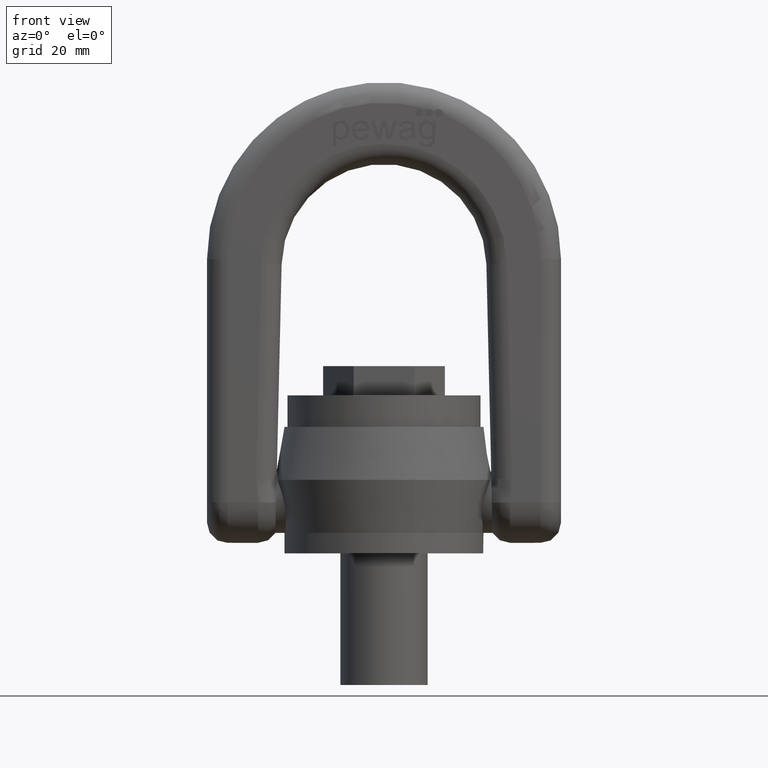
[diagram: clean part render]
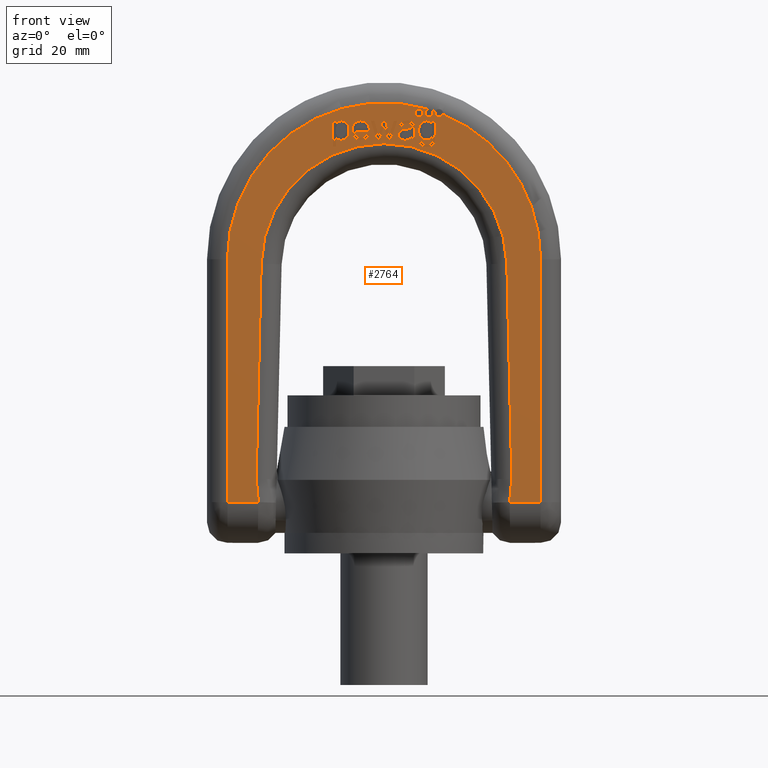
[diagram: same view with one face highlighted and labeled with its STEP entity id]
A machine part, front view. The second image highlights one B-rep face of the part: STEP entity #2764.
In plain terms, the highlighted planar face has unit normal (0, 1, 0).
Its self-contained STEP definition (entity closure, byte-faithful):
#321=B_SPLINE_CURVE_WITH_KNOTS('',3,(#6730,#6731,#6732,#6733),
 .UNSPECIFIED.,.F.,.F.,(4,4),(0.,1.),.UNSPECIFIED.);
#322=B_SPLINE_CURVE_WITH_KNOTS('',3,(#6738,#6739,#6740,#6741),
 .UNSPECIFIED.,.F.,.F.,(4,4),(0.,1.),.UNSPECIFIED.);
#323=B_SPLINE_CURVE_WITH_KNOTS('',3,(#6743,#6744,#6745,#6746,#6747,#6748,
#6749,#6750,#6751,#6752),.UNSPECIFIED.,.F.,.F.,(4,2,2,2,4),(0.,0.22835848191408,
0.466434346037285,0.703045305681466,1.),.UNSPECIFIED.);
#324=B_SPLINE_CURVE_WITH_KNOTS('',3,(#6754,#6755,#6756,#6757),
 .UNSPECIFIED.,.F.,.F.,(4,4),(0.,1.),.UNSPECIFIED.);
#325=B_SPLINE_CURVE_WITH_KNOTS('',3,(#6761,#6762,#6763,#6764),
 .UNSPECIFIED.,.F.,.F.,(4,4),(0.,1.),.UNSPECIFIED.);
#326=B_SPLINE_CURVE_WITH_KNOTS('',3,(#6766,#6767,#6768,#6769),
 .UNSPECIFIED.,.F.,.F.,(4,4),(0.,1.),.UNSPECIFIED.);
#327=B_SPLINE_CURVE_WITH_KNOTS('',3,(#6771,#6772,#6773,#6774),
 .UNSPECIFIED.,.F.,.F.,(4,4),(0.,1.),.UNSPECIFIED.);
#328=B_SPLINE_CURVE_WITH_KNOTS('',3,(#6776,#6777,#6778,#6779),
 .UNSPECIFIED.,.F.,.F.,(4,4),(0.,1.),.UNSPECIFIED.);
#329=B_SPLINE_CURVE_WITH_KNOTS('',3,(#6781,#6782,#6783,#6784,#6785,#6786),
 .UNSPECIFIED.,.F.,.F.,(4,2,4),(0.,0.559782608695652,1.),.UNSPECIFIED.);
#330=B_SPLINE_CURVE_WITH_KNOTS('',3,(#6788,#6789,#6790,#6791),
 .UNSPECIFIED.,.F.,.F.,(4,4),(0.,1.),.UNSPECIFIED.);
#331=B_SPLINE_CURVE_WITH_KNOTS('',3,(#6795,#6796,#6797,#6798),
 .UNSPECIFIED.,.F.,.F.,(4,4),(0.,1.),.UNSPECIFIED.);
#332=B_SPLINE_CURVE_WITH_KNOTS('',3,(#6800,#6801,#6802,#6803,#6804,#6805),
 .UNSPECIFIED.,.F.,.F.,(4,2,4),(0.,0.476123595505616,1.),.UNSPECIFIED.);
#333=B_SPLINE_CURVE_WITH_KNOTS('',3,(#6807,#6808,#6809,#6810),
 .UNSPECIFIED.,.F.,.F.,(4,4),(0.,1.),.UNSPECIFIED.);
#334=B_SPLINE_CURVE_WITH_KNOTS('',3,(#6812,#6813,#6814,#6815,#6816,#6817,
#6818,#6819),.UNSPECIFIED.,.F.,.F.,(4,2,2,4),(0.,0.472355769230765,0.730769230769227,
1.),.UNSPECIFIED.);
#335=B_SPLINE_CURVE_WITH_KNOTS('',3,(#6823,#6824,#6825,#6826),
 .UNSPECIFIED.,.F.,.F.,(4,4),(0.,1.),.UNSPECIFIED.);
#336=B_SPLINE_CURVE_WITH_KNOTS('',3,(#6828,#6829,#6830,#6831),
 .UNSPECIFIED.,.F.,.F.,(4,4),(0.,1.),.UNSPECIFIED.);
#337=B_SPLINE_CURVE_WITH_KNOTS('',3,(#6833,#6834,#6835,#6836,#6837,#6838,
#6839,#6840,#6841,#6842),.UNSPECIFIED.,.F.,.F.,(4,2,2,2,4),(0.,0.23013929483635,
0.492074150143511,0.754009005450665,1.),.UNSPECIFIED.);
#338=B_SPLINE_CURVE_WITH_KNOTS('',3,(#6860,#6861,#6862,#6863,#6864,#6865),
 .UNSPECIFIED.,.F.,.F.,(4,2,4),(0.,0.329498767460973,1.),.UNSPECIFIED.);
#339=B_SPLINE_CURVE_WITH_KNOTS('',3,(#6867,#6868,#6869,#6870,#6871,#6872,
#6873,#6874),.UNSPECIFIED.,.F.,.F.,(4,2,2,4),(0.,0.361028692437346,0.681441656975491,
1.),.UNSPECIFIED.);
#340=B_SPLINE_CURVE_WITH_KNOTS('',3,(#6876,#6877,#6878,#6879),
 .UNSPECIFIED.,.F.,.F.,(4,4),(0.,1.),.UNSPECIFIED.);
#341=B_SPLINE_CURVE_WITH_KNOTS('',3,(#6883,#6884,#6885,#6886),
 .UNSPECIFIED.,.F.,.F.,(4,4),(0.,1.),.UNSPECIFIED.);
#342=B_SPLINE_CURVE_WITH_KNOTS('',3,(#6888,#6889,#6890,#6891,#6892,#6893),
 .UNSPECIFIED.,.F.,.F.,(4,2,4),(0.,0.555803571428572,1.),.UNSPECIFIED.);
#343=B_SPLINE_CURVE_WITH_KNOTS('',3,(#6895,#6896,#6897,#6898,#6899,#6900),
 .UNSPECIFIED.,.F.,.F.,(4,2,4),(0.,0.500000000000021,1.),.UNSPECIFIED.);
#344=B_SPLINE_CURVE_WITH_KNOTS('',3,(#6902,#6903,#6904,#6905,#6906,#6907,
#6908,#6909,#6910,#6911,#6912,#6913,#6914,#6915),.UNSPECIFIED.,.F.,.F.,
(4,2,2,2,2,2,4),(0.,0.15220134604599,0.327187324733596,0.502173303421202,
0.676318003365113,0.850462703309028,1.),.UNSPECIFIED.);
#345=B_SPLINE_CURVE_WITH_KNOTS('',3,(#6920,#6921,#6922,#6923),
 .UNSPECIFIED.,.F.,.F.,(4,4),(0.,1.),.UNSPECIFIED.);
#346=B_SPLINE_CURVE_WITH_KNOTS('',3,(#6931,#6932,#6933,#6934),
 .UNSPECIFIED.,.F.,.F.,(4,4),(0.,1.),.UNSPECIFIED.);
#347=B_SPLINE_CURVE_WITH_KNOTS('',3,(#6948,#6949,#6950,#6951),
 .UNSPECIFIED.,.F.,.F.,(4,4),(0.,1.),.UNSPECIFIED.);
#348=B_SPLINE_CURVE_WITH_KNOTS('',3,(#6956,#6957,#6958,#6959),
 .UNSPECIFIED.,.F.,.F.,(4,4),(0.,1.),.UNSPECIFIED.);
#349=B_SPLINE_CURVE_WITH_KNOTS('',3,(#6961,#6962,#6963,#6964,#6965,#6966),
 .UNSPECIFIED.,.F.,.F.,(4,2,4),(0.,0.434679334916865,1.),.UNSPECIFIED.);
#350=B_SPLINE_CURVE_WITH_KNOTS('',3,(#6968,#6969,#6970,#6971),
 .UNSPECIFIED.,.F.,.F.,(4,4),(0.,1.),.UNSPECIFIED.);
#351=B_SPLINE_CURVE_WITH_KNOTS('',3,(#6975,#6976,#6977,#6978),
 .UNSPECIFIED.,.F.,.F.,(4,4),(0.,1.),.UNSPECIFIED.);
#352=B_SPLINE_CURVE_WITH_KNOTS('',3,(#6980,#6981,#6982,#6983,#6984,#6985),
 .UNSPECIFIED.,.F.,.F.,(4,2,4),(0.,0.570469798657717,1.),.UNSPECIFIED.);
#353=B_SPLINE_CURVE_WITH_KNOTS('',3,(#6987,#6988,#6989,#6990,#6991,#6992,
#6993,#6994,#6995,#6996,#6997,#6998),.UNSPECIFIED.,.F.,.F.,(4,2,2,2,2,4),
(0.,0.122570626594235,0.24514125318847,0.495637533752417,0.746133814316363,
1.),.UNSPECIFIED.);
#354=B_SPLINE_CURVE_WITH_KNOTS('',3,(#7008,#7009,#7010,#7011),
 .UNSPECIFIED.,.F.,.F.,(4,4),(0.,1.),.UNSPECIFIED.);
#355=B_SPLINE_CURVE_WITH_KNOTS('',3,(#7013,#7014,#7015,#7016),
 .UNSPECIFIED.,.F.,.F.,(4,4),(0.,1.),.UNSPECIFIED.);
#356=B_SPLINE_CURVE_WITH_KNOTS('',3,(#7038,#7039,#7040,#7041),
 .UNSPECIFIED.,.F.,.F.,(4,4),(0.,1.),.UNSPECIFIED.);
#1791=LINE('',#6694,#2073);
#1794=LINE('',#6726,#2076);
#1795=LINE('',#6736,#2077);
#1796=LINE('',#6759,#2078);
#1797=LINE('',#6793,#2079);
#1798=LINE('',#6820,#2080);
#1799=LINE('',#6844,#2081);
#1800=LINE('',#6846,#2082);
#1801=LINE('',#6848,#2083);
#1802=LINE('',#6850,#2084);
#1803=LINE('',#6852,#2085);
#1804=LINE('',#6854,#2086);
#1805=LINE('',#6857,#2087);
#1806=LINE('',#6881,#2088);
#1807=LINE('',#6917,#2089);
#1808=LINE('',#6919,#2090);
#1809=LINE('',#6925,#2091);
#1810=LINE('',#6929,#2092);
#1811=LINE('',#6935,#2093);
#1812=LINE('',#6947,#2094);
#1813=LINE('',#6954,#2095);
#1814=LINE('',#6973,#2096);
#1815=LINE('',#6999,#2097);
#1816=LINE('',#7002,#2098);
#1817=LINE('',#7004,#2099);
#1818=LINE('',#7006,#2100);
#1819=LINE('',#7018,#2101);
#1820=LINE('',#7020,#2102);
#1821=LINE('',#7022,#2103);
#1822=LINE('',#7024,#2104);
#1823=LINE('',#7026,#2105);
#1824=LINE('',#7028,#2106);
#1825=LINE('',#7030,#2107);
#1826=LINE('',#7032,#2108);
#1827=LINE('',#7034,#2109);
#1828=LINE('',#7036,#2110);
#1829=LINE('',#7043,#2111);
#1830=LINE('',#7045,#2112);
#2073=VECTOR('',#5908,1.);
#2076=VECTOR('',#5915,1.);
#2077=VECTOR('',#5920,1.);
#2078=VECTOR('',#5921,1.);
#2079=VECTOR('',#5922,1.);
#2080=VECTOR('',#5923,1.);
#2081=VECTOR('',#5924,1.);
#2082=VECTOR('',#5925,1.);
#2083=VECTOR('',#5926,1.);
#2084=VECTOR('',#5927,1.);
#2085=VECTOR('',#5928,1.);
#2086=VECTOR('',#5929,1.);
#2087=VECTOR('',#5932,1.);
#2088=VECTOR('',#5933,1.);
#2089=VECTOR('',#5934,1.);
#2090=VECTOR('',#5935,1.);
#2091=VECTOR('',#5936,1.);
#2092=VECTOR('',#5939,1.);
#2093=VECTOR('',#5940,1.);
#2094=VECTOR('',#5951,1.);
#2095=VECTOR('',#5952,1.);
#2096=VECTOR('',#5953,1.);
#2097=VECTOR('',#5954,1.);
#2098=VECTOR('',#5955,1.);
#2099=VECTOR('',#5956,1.);
#2100=VECTOR('',#5957,1.);
#2101=VECTOR('',#5958,1.);
#2102=VECTOR('',#5959,1.);
#2103=VECTOR('',#5960,1.);
#2104=VECTOR('',#5961,1.);
#2105=VECTOR('',#5962,1.);
#2106=VECTOR('',#5963,1.);
#2107=VECTOR('',#5964,1.);
#2108=VECTOR('',#5965,1.);
#2109=VECTOR('',#5966,1.);
#2110=VECTOR('',#5967,1.);
#2111=VECTOR('',#5968,1.);
#2112=VECTOR('',#5969,1.);
#2643=PLANE('',#5644);
#2764=ADVANCED_FACE('',(#3019,#3020,#3021,#3022,#3023,#3024,#3025),#2643,
 .F.);
#3019=FACE_BOUND('',#3097,.T.);
#3020=FACE_BOUND('',#3098,.T.);
#3021=FACE_BOUND('',#3099,.T.);
#3022=FACE_BOUND('',#3100,.T.);
#3023=FACE_BOUND('',#3101,.T.);
#3024=FACE_BOUND('',#3102,.T.);
#3025=FACE_BOUND('',#3103,.T.);
#3097=EDGE_LOOP('',(#3435,#3436,#3437,#3438,#3439,#3440,#3441,#3442,#3443,
#3444,#3445,#3446,#3447,#3448,#3449,#3450,#3451));
#3098=EDGE_LOOP('',(#3452,#3453,#3454,#3455,#3456,#3457,#3458,#3459,#3460,
#3461));
#3099=EDGE_LOOP('',(#3462));
#3100=EDGE_LOOP('',(#3463,#3464,#3465,#3466,#3467,#3468,#3469,#3470,#3471,
#3472,#3473));
#3101=EDGE_LOOP('',(#3474,#3475,#3476,#3477,#3478,#3479,#3480,#3481,#3482,
#3483,#3484,#3485,#3486,#3487));
#3102=EDGE_LOOP('',(#3488,#3489,#3490,#3491,#3492,#3493,#3494,#3495,#3496));
#3103=EDGE_LOOP('',(#3497,#3498,#3499,#3500,#3501,#3502,#3503,#3504,#3505,
#3506,#3507,#3508,#3509,#3510,#3511,#3512,#3513,#3514,#3515));
#3435=ORIENTED_EDGE('',*,*,#4995,.F.);
#3436=ORIENTED_EDGE('',*,*,#4996,.F.);
#3437=ORIENTED_EDGE('',*,*,#4997,.F.);
#3438=ORIENTED_EDGE('',*,*,#4998,.F.);
#3439=ORIENTED_EDGE('',*,*,#4999,.F.);
#3440=ORIENTED_EDGE('',*,*,#5000,.F.);
#3441=ORIENTED_EDGE('',*,*,#5001,.F.);
#3442=ORIENTED_EDGE('',*,*,#5002,.F.);
#3443=ORIENTED_EDGE('',*,*,#5003,.F.);
#3444=ORIENTED_EDGE('',*,*,#5004,.F.);
#3445=ORIENTED_EDGE('',*,*,#5005,.F.);
#3446=ORIENTED_EDGE('',*,*,#5006,.F.);
#3447=ORIENTED_EDGE('',*,*,#5007,.F.);
#3448=ORIENTED_EDGE('',*,*,#5008,.F.);
#3449=ORIENTED_EDGE('',*,*,#5009,.F.);
#3450=ORIENTED_EDGE('',*,*,#5010,.F.);
#3451=ORIENTED_EDGE('',*,*,#5011,.F.);
#3452=ORIENTED_EDGE('',*,*,#5012,.F.);
#3453=ORIENTED_EDGE('',*,*,#5013,.F.);
#3454=ORIENTED_EDGE('',*,*,#5014,.F.);
#3455=ORIENTED_EDGE('',*,*,#5015,.F.);
#3456=ORIENTED_EDGE('',*,*,#5016,.F.);
#3457=ORIENTED_EDGE('',*,*,#5017,.F.);
#3458=ORIENTED_EDGE('',*,*,#5018,.F.);
#3459=ORIENTED_EDGE('',*,*,#5019,.F.);
#3460=ORIENTED_EDGE('',*,*,#5020,.F.);
#3461=ORIENTED_EDGE('',*,*,#5021,.F.);
#3462=ORIENTED_EDGE('',*,*,#5022,.F.);
#3463=ORIENTED_EDGE('',*,*,#5023,.F.);
#3464=ORIENTED_EDGE('',*,*,#5024,.F.);
#3465=ORIENTED_EDGE('',*,*,#5025,.F.);
#3466=ORIENTED_EDGE('',*,*,#5026,.F.);
#3467=ORIENTED_EDGE('',*,*,#5027,.F.);
#3468=ORIENTED_EDGE('',*,*,#5028,.F.);
#3469=ORIENTED_EDGE('',*,*,#5029,.F.);
#3470=ORIENTED_EDGE('',*,*,#5030,.F.);
#3471=ORIENTED_EDGE('',*,*,#5031,.F.);
#3472=ORIENTED_EDGE('',*,*,#5032,.F.);
#3473=ORIENTED_EDGE('',*,*,#5033,.F.);
#3474=ORIENTED_EDGE('',*,*,#4993,.T.);
#3475=ORIENTED_EDGE('',*,*,#5034,.T.);
#3476=ORIENTED_EDGE('',*,*,#5035,.T.);
#3477=ORIENTED_EDGE('',*,*,#5036,.T.);
#3478=ORIENTED_EDGE('',*,*,#5037,.T.);
#3479=ORIENTED_EDGE('',*,*,#5038,.T.);
#3480=ORIENTED_EDGE('',*,*,#4987,.T.);
#3481=ORIENTED_EDGE('',*,*,#5039,.T.);
#3482=ORIENTED_EDGE('',*,*,#5040,.T.);
#3483=ORIENTED_EDGE('',*,*,#5041,.F.);
#3484=ORIENTED_EDGE('',*,*,#5042,.T.);
#3485=ORIENTED_EDGE('',*,*,#5043,.F.);
#3486=ORIENTED_EDGE('',*,*,#5044,.T.);
#3487=ORIENTED_EDGE('',*,*,#5045,.T.);
#3488=ORIENTED_EDGE('',*,*,#5046,.F.);
#3489=ORIENTED_EDGE('',*,*,#5047,.F.);
#3490=ORIENTED_EDGE('',*,*,#5048,.F.);
#3491=ORIENTED_EDGE('',*,*,#5049,.F.);
#3492=ORIENTED_EDGE('',*,*,#5050,.F.);
#3493=ORIENTED_EDGE('',*,*,#5051,.F.);
#3494=ORIENTED_EDGE('',*,*,#5052,.F.);
#3495=ORIENTED_EDGE('',*,*,#5053,.F.);
#3496=ORIENTED_EDGE('',*,*,#5054,.F.);
#3497=ORIENTED_EDGE('',*,*,#5055,.F.);
#3498=ORIENTED_EDGE('',*,*,#5056,.F.);
#3499=ORIENTED_EDGE('',*,*,#5057,.F.);
#3500=ORIENTED_EDGE('',*,*,#5058,.F.);
#3501=ORIENTED_EDGE('',*,*,#5059,.F.);
#3502=ORIENTED_EDGE('',*,*,#5060,.F.);
#3503=ORIENTED_EDGE('',*,*,#5061,.F.);
#3504=ORIENTED_EDGE('',*,*,#5062,.F.);
#3505=ORIENTED_EDGE('',*,*,#5063,.F.);
#3506=ORIENTED_EDGE('',*,*,#5064,.F.);
#3507=ORIENTED_EDGE('',*,*,#5065,.F.);
#3508=ORIENTED_EDGE('',*,*,#5066,.F.);
#3509=ORIENTED_EDGE('',*,*,#5067,.F.);
#3510=ORIENTED_EDGE('',*,*,#5068,.F.);
#3511=ORIENTED_EDGE('',*,*,#5069,.F.);
#3512=ORIENTED_EDGE('',*,*,#5070,.F.);
#3513=ORIENTED_EDGE('',*,*,#5071,.F.);
#3514=ORIENTED_EDGE('',*,*,#5072,.F.);
#3515=ORIENTED_EDGE('',*,*,#5073,.F.);
#4575=VERTEX_POINT('',#6695);
#4576=VERTEX_POINT('',#6696);
#4581=VERTEX_POINT('',#6725);
#4582=VERTEX_POINT('',#6727);
#4583=VERTEX_POINT('',#6734);
#4584=VERTEX_POINT('',#6735);
#4585=VERTEX_POINT('',#6737);
#4586=VERTEX_POINT('',#6742);
#4587=VERTEX_POINT('',#6753);
#4588=VERTEX_POINT('',#6758);
#4589=VERTEX_POINT('',#6760);
#4590=VERTEX_POINT('',#6765);
#4591=VERTEX_POINT('',#6770);
#4592=VERTEX_POINT('',#6775);
#4593=VERTEX_POINT('',#6780);
#4594=VERTEX_POINT('',#6787);
#4595=VERTEX_POINT('',#6792);
#4596=VERTEX_POINT('',#6794);
#4597=VERTEX_POINT('',#6799);
#4598=VERTEX_POINT('',#6806);
#4599=VERTEX_POINT('',#6811);
#4600=VERTEX_POINT('',#6821);
#4601=VERTEX_POINT('',#6822);
#4602=VERTEX_POINT('',#6827);
#4603=VERTEX_POINT('',#6832);
#4604=VERTEX_POINT('',#6843);
#4605=VERTEX_POINT('',#6845);
#4606=VERTEX_POINT('',#6847);
#4607=VERTEX_POINT('',#6849);
#4608=VERTEX_POINT('',#6851);
#4609=VERTEX_POINT('',#6853);
#4610=VERTEX_POINT('',#6856);
#4611=VERTEX_POINT('',#6858);
#4612=VERTEX_POINT('',#6859);
#4613=VERTEX_POINT('',#6866);
#4614=VERTEX_POINT('',#6875);
#4615=VERTEX_POINT('',#6880);
#4616=VERTEX_POINT('',#6882);
#4617=VERTEX_POINT('',#6887);
#4618=VERTEX_POINT('',#6894);
#4619=VERTEX_POINT('',#6901);
#4620=VERTEX_POINT('',#6916);
#4621=VERTEX_POINT('',#6918);
#4622=VERTEX_POINT('',#6924);
#4623=VERTEX_POINT('',#6926);
#4624=VERTEX_POINT('',#6928);
#4625=VERTEX_POINT('',#6930);
#4626=VERTEX_POINT('',#6936);
#4627=VERTEX_POINT('',#6938);
#4628=VERTEX_POINT('',#6940);
#4629=VERTEX_POINT('',#6942);
#4630=VERTEX_POINT('',#6944);
#4631=VERTEX_POINT('',#6946);
#4632=VERTEX_POINT('',#6952);
#4633=VERTEX_POINT('',#6953);
#4634=VERTEX_POINT('',#6955);
#4635=VERTEX_POINT('',#6960);
#4636=VERTEX_POINT('',#6967);
#4637=VERTEX_POINT('',#6972);
#4638=VERTEX_POINT('',#6974);
#4639=VERTEX_POINT('',#6979);
#4640=VERTEX_POINT('',#6986);
#4641=VERTEX_POINT('',#7000);
#4642=VERTEX_POINT('',#7001);
#4643=VERTEX_POINT('',#7003);
#4644=VERTEX_POINT('',#7005);
#4645=VERTEX_POINT('',#7007);
#4646=VERTEX_POINT('',#7012);
#4647=VERTEX_POINT('',#7017);
#4648=VERTEX_POINT('',#7019);
#4649=VERTEX_POINT('',#7021);
#4650=VERTEX_POINT('',#7023);
#4651=VERTEX_POINT('',#7025);
#4652=VERTEX_POINT('',#7027);
#4653=VERTEX_POINT('',#7029);
#4654=VERTEX_POINT('',#7031);
#4655=VERTEX_POINT('',#7033);
#4656=VERTEX_POINT('',#7035);
#4657=VERTEX_POINT('',#7037);
#4658=VERTEX_POINT('',#7042);
#4659=VERTEX_POINT('',#7044);
#4987=EDGE_CURVE('',#4575,#4576,#1791,.T.);
#4993=EDGE_CURVE('',#4582,#4581,#1794,.T.);
#4995=EDGE_CURVE('',#4583,#4584,#321,.T.);
#4996=EDGE_CURVE('',#4585,#4583,#1795,.T.);
#4997=EDGE_CURVE('',#4586,#4585,#322,.T.);
#4998=EDGE_CURVE('',#4587,#4586,#323,.T.);
#4999=EDGE_CURVE('',#4588,#4587,#324,.T.);
#5000=EDGE_CURVE('',#4589,#4588,#1796,.T.);
#5001=EDGE_CURVE('',#4590,#4589,#325,.T.);
#5002=EDGE_CURVE('',#4591,#4590,#326,.T.);
#5003=EDGE_CURVE('',#4592,#4591,#327,.T.);
#5004=EDGE_CURVE('',#4593,#4592,#328,.T.);
#5005=EDGE_CURVE('',#4594,#4593,#329,.T.);
#5006=EDGE_CURVE('',#4595,#4594,#330,.T.);
#5007=EDGE_CURVE('',#4596,#4595,#1797,.T.);
#5008=EDGE_CURVE('',#4597,#4596,#331,.T.);
#5009=EDGE_CURVE('',#4598,#4597,#332,.T.);
#5010=EDGE_CURVE('',#4599,#4598,#333,.T.);
#5011=EDGE_CURVE('',#4584,#4599,#334,.T.);
#5012=EDGE_CURVE('',#4600,#4601,#1798,.T.);
#5013=EDGE_CURVE('',#4602,#4600,#335,.T.);
#5014=EDGE_CURVE('',#4603,#4602,#336,.T.);
#5015=EDGE_CURVE('',#4604,#4603,#337,.T.);
#5016=EDGE_CURVE('',#4605,#4604,#1799,.T.);
#5017=EDGE_CURVE('',#4606,#4605,#1800,.T.);
#5018=EDGE_CURVE('',#4607,#4606,#1801,.T.);
#5019=EDGE_CURVE('',#4608,#4607,#1802,.T.);
#5020=EDGE_CURVE('',#4609,#4608,#1803,.T.);
#5021=EDGE_CURVE('',#4601,#4609,#1804,.T.);
#5022=EDGE_CURVE('',#4610,#4610,#5555,.T.);
#5023=EDGE_CURVE('',#4611,#4612,#1805,.T.);
#5024=EDGE_CURVE('',#4613,#4611,#338,.T.);
#5025=EDGE_CURVE('',#4614,#4613,#339,.T.);
#5026=EDGE_CURVE('',#4615,#4614,#340,.T.);
#5027=EDGE_CURVE('',#4616,#4615,#1806,.T.);
#5028=EDGE_CURVE('',#4617,#4616,#341,.T.);
#5029=EDGE_CURVE('',#4618,#4617,#342,.T.);
#5030=EDGE_CURVE('',#4619,#4618,#343,.T.);
#5031=EDGE_CURVE('',#4620,#4619,#344,.T.);
#5032=EDGE_CURVE('',#4621,#4620,#1807,.T.);
#5033=EDGE_CURVE('',#4612,#4621,#1808,.T.);
#5034=EDGE_CURVE('',#4581,#4622,#345,.T.);
#5035=EDGE_CURVE('',#4622,#4623,#1809,.T.);
#5036=EDGE_CURVE('',#4623,#4624,#5556,.T.);
#5037=EDGE_CURVE('',#4624,#4625,#1810,.T.);
#5038=EDGE_CURVE('',#4625,#4575,#346,.T.);
#5039=EDGE_CURVE('',#4576,#4626,#1811,.T.);
#5040=EDGE_CURVE('',#4626,#4627,#5557,.T.);
#5041=EDGE_CURVE('',#4628,#4627,#5558,.T.);
#5042=EDGE_CURVE('',#4628,#4629,#5559,.T.);
#5043=EDGE_CURVE('',#4630,#4629,#5560,.T.);
#5044=EDGE_CURVE('',#4630,#4631,#5561,.T.);
#5045=EDGE_CURVE('',#4631,#4582,#1812,.T.);
#5046=EDGE_CURVE('',#4632,#4633,#347,.T.);
#5047=EDGE_CURVE('',#4634,#4632,#1813,.T.);
#5048=EDGE_CURVE('',#4635,#4634,#348,.T.);
#5049=EDGE_CURVE('',#4636,#4635,#349,.T.);
#5050=EDGE_CURVE('',#4637,#4636,#350,.T.);
#5051=EDGE_CURVE('',#4638,#4637,#1814,.T.);
#5052=EDGE_CURVE('',#4639,#4638,#351,.T.);
#5053=EDGE_CURVE('',#4640,#4639,#352,.T.);
#5054=EDGE_CURVE('',#4633,#4640,#353,.T.);
#5055=EDGE_CURVE('',#4641,#4642,#1815,.T.);
#5056=EDGE_CURVE('',#4643,#4641,#1816,.T.);
#5057=EDGE_CURVE('',#4644,#4643,#1817,.T.);
#5058=EDGE_CURVE('',#4645,#4644,#1818,.T.);
#5059=EDGE_CURVE('',#4646,#4645,#354,.T.);
#5060=EDGE_CURVE('',#4647,#4646,#355,.T.);
#5061=EDGE_CURVE('',#4648,#4647,#1819,.T.);
#5062=EDGE_CURVE('',#4649,#4648,#1820,.T.);
#5063=EDGE_CURVE('',#4650,#4649,#1821,.T.);
#5064=EDGE_CURVE('',#4651,#4650,#1822,.T.);
#5065=EDGE_CURVE('',#4652,#4651,#1823,.T.);
#5066=EDGE_CURVE('',#4653,#4652,#1824,.T.);
#5067=EDGE_CURVE('',#4654,#4653,#1825,.T.);
#5068=EDGE_CURVE('',#4655,#4654,#1826,.T.);
#5069=EDGE_CURVE('',#4656,#4655,#1827,.T.);
#5070=EDGE_CURVE('',#4657,#4656,#1828,.T.);
#5071=EDGE_CURVE('',#4658,#4657,#356,.T.);
#5072=EDGE_CURVE('',#4659,#4658,#1829,.T.);
#5073=EDGE_CURVE('',#4642,#4659,#1830,.T.);
#5555=CIRCLE('',#5637,1.3125);
#5556=CIRCLE('',#5638,42.);
#5557=CIRCLE('',#5639,53.5);
#5558=CIRCLE('',#5640,1.3125);
#5559=CIRCLE('',#5641,53.5);
#5560=CIRCLE('',#5642,1.3125);
#5561=CIRCLE('',#5643,53.5);
#5637=AXIS2_PLACEMENT_3D('',#6855,#5930,#5931);
#5638=AXIS2_PLACEMENT_3D('',#6927,#5937,#5938);
#5639=AXIS2_PLACEMENT_3D('',#6937,#5941,#5942);
#5640=AXIS2_PLACEMENT_3D('',#6939,#5943,#5944);
#5641=AXIS2_PLACEMENT_3D('',#6941,#5945,#5946);
#5642=AXIS2_PLACEMENT_3D('',#6943,#5947,#5948);
#5643=AXIS2_PLACEMENT_3D('',#6945,#5949,#5950);
#5644=AXIS2_PLACEMENT_3D('',#7046,#5970,#5971);
#5908=DIRECTION('',(1.,0.,-1.02768984071536E-15));
#5915=DIRECTION('',(1.,0.,-1.11825149691067E-15));
#5920=DIRECTION('',(1.,0.,0.));
#5921=DIRECTION('',(-0.989370262977939,0.,-0.145418302613403));
#5922=DIRECTION('',(0.991928985003784,0.,-0.126794671454929));
#5923=DIRECTION('',(-1.,0.,0.));
#5924=DIRECTION('',(1.,0.,0.));
#5925=DIRECTION('',(0.,0.,1.));
#5926=DIRECTION('',(1.,0.,0.));
#5927=DIRECTION('',(0.,0.,-1.));
#5928=DIRECTION('',(-1.,0.,0.));
#5929=DIRECTION('',(0.,0.,1.));
#5930=DIRECTION('',(0.,-1.,0.));
#5931=DIRECTION('',(0.,0.,0.999999999999996));
#5932=DIRECTION('',(-1.,0.,0.));
#5933=DIRECTION('',(-0.988666662925715,0.,0.150127377980603));
#5934=DIRECTION('',(-1.,0.,0.));
#5935=DIRECTION('',(0.,0.,-1.));
#5936=DIRECTION('',(0.0230857815721755,0.,0.999733487830233));
#5937=DIRECTION('',(0.,1.,0.));
#5938=DIRECTION('',(0.,0.,1.));
#5939=DIRECTION('',(0.0230857815721755,0.,-0.999733487830233));
#5940=DIRECTION('',(-9.29954853100969E-16,0.,1.));
#5941=DIRECTION('',(0.,-1.,0.));
#5942=DIRECTION('',(0.,0.,1.));
#5943=DIRECTION('',(0.,-1.,0.));
#5944=DIRECTION('',(0.,0.,0.999999999999996));
#5945=DIRECTION('',(0.,-1.,0.));
#5946=DIRECTION('',(0.,0.,1.));
#5947=DIRECTION('',(0.,-1.,0.));
#5948=DIRECTION('',(0.,0.,0.999999999999996));
#5949=DIRECTION('',(0.,-1.,0.));
#5950=DIRECTION('',(0.,0.,1.));
#5951=DIRECTION('',(-9.29954853100969E-16,0.,-1.));
#5952=DIRECTION('',(1.,0.,0.));
#5953=DIRECTION('',(-0.992687288142564,0.,0.120714323757216));
#5954=DIRECTION('',(-1.,0.,0.));
#5955=DIRECTION('',(0.304245570453575,0.,0.952593634693923));
#5956=DIRECTION('',(1.,0.,0.));
#5957=DIRECTION('',(0.259135455314437,0.,-0.965840988879111));
#5958=DIRECTION('',(1.,0.,0.));
#5959=DIRECTION('',(0.254367653151693,0.,0.967107593305988));
#5960=DIRECTION('',(1.,0.,0.));
#5961=DIRECTION('',(0.298320908470946,0.,-0.954465628280594));
#5962=DIRECTION('',(-1.,0.,0.));
#5963=DIRECTION('',(-0.269463722620021,0.,0.963010541059526));
#5964=DIRECTION('',(-0.247736970080359,0.,-0.968827329122896));
#5965=DIRECTION('',(-0.26605956351618,0.,-0.963956590652079));
#5966=DIRECTION('',(-1.,0.,0.));
#5967=DIRECTION('',(-0.253070161005817,0.,0.967447928112149));
#5968=DIRECTION('',(-1.,0.,0.));
#5969=DIRECTION('',(-0.287282618696352,0.,-0.957845862858407));
#5970=DIRECTION('',(0.,1.,0.));
#5971=DIRECTION('',(0.,0.,1.));
#6694=CARTESIAN_POINT('',(-8.27290321775861E-14,-14.,17.5));
#6695=CARTESIAN_POINT('',(42.9328327841079,-14.,17.4999999999999));
#6696=CARTESIAN_POINT('',(53.5,-14.,17.4999999999999));
#6725=CARTESIAN_POINT('',(-42.9328327841079,-14.,17.5000000000001));
#6726=CARTESIAN_POINT('',(-9.00192455013088E-14,-14.,17.5));
#6727=CARTESIAN_POINT('',(-53.5,-14.,17.5000000000001));
#6730=CARTESIAN_POINT('',(10.8926595952366,-14.,141.333333333333));
#6731=CARTESIAN_POINT('',(10.7263942213835,-14.,141.619851624456));
#6732=CARTESIAN_POINT('',(10.6261794754995,-14.,141.913085188028));
#6733=CARTESIAN_POINT('',(10.5920153575844,-14.,142.213034024047));
#6734=CARTESIAN_POINT('',(10.8926595952366,-14.,141.333333333333));
#6735=CARTESIAN_POINT('',(10.5920153575844,-14.,142.213034024047));
#6736=CARTESIAN_POINT('',(0.,-14.,141.333333333333));
#6737=CARTESIAN_POINT('',(9.74474523329213,-14.,141.333333333333));
#6738=CARTESIAN_POINT('',(9.51926205505304,-14.,142.114543361474));
#6739=CARTESIAN_POINT('',(9.56253660441206,-14.,141.79221028396));
#6740=CARTESIAN_POINT('',(9.63769766382509,-14.,141.53255308263));
#6741=CARTESIAN_POINT('',(9.74474523329213,-14.,141.333333333333));
#6742=CARTESIAN_POINT('',(9.51926205505304,-14.,142.114543361474));
#6743=CARTESIAN_POINT('',(5.51294982755256,-14.,144.308199027884));
#6744=CARTESIAN_POINT('',(5.13486692262642,-14.,143.967958557176));
#6745=CARTESIAN_POINT('',(4.94582547016335,-14.,143.535942696342));
#6746=CARTESIAN_POINT('',(4.94582547016335,-14.,142.46149910463));
#6747=CARTESIAN_POINT('',(5.14169974620942,-14.,142.020529547199));
#6748=CARTESIAN_POINT('',(5.92732758395036,-14.,141.351068289354));
#6749=CARTESIAN_POINT('',(6.46498991345091,-14.,141.183358915324));
#6750=CARTESIAN_POINT('',(7.99554239604348,-14.,141.183358915324));
#6751=CARTESIAN_POINT('',(8.78587232381077,-14.,141.49449987209));
#6752=CARTESIAN_POINT('',(9.51926205505304,-14.,142.114543361474));
#6753=CARTESIAN_POINT('',(5.51294982755256,-14.,144.308199027884));
#6754=CARTESIAN_POINT('',(7.48535823517929,-14.,144.986441545152));
#6755=CARTESIAN_POINT('',(6.54926140430794,-14.,144.874520337682));
#6756=CARTESIAN_POINT('',(5.8933103403397,-14.,144.648439498593));
#6757=CARTESIAN_POINT('',(5.51294982755256,-14.,144.308199027884));
#6758=CARTESIAN_POINT('',(7.48535823517929,-14.,144.986441545152));
#6759=CARTESIAN_POINT('',(-6.60176989394519,-14.,142.91590603596));
#6760=CARTESIAN_POINT('',(8.50572655690767,-14.,145.136415963162));
#6761=CARTESIAN_POINT('',(9.44637860350102,-14.,145.355781529803));
#6762=CARTESIAN_POINT('',(9.19811934665193,-14.,145.268482987976));
#6763=CARTESIAN_POINT('',(8.88608706969481,-14.,145.194614991046));
#6764=CARTESIAN_POINT('',(8.50572655690767,-14.,145.136415963162));
#6765=CARTESIAN_POINT('',(9.44637860350102,-14.,145.355781529803));
#6766=CARTESIAN_POINT('',(9.416769701308,-14.,146.03850089537));
#6767=CARTESIAN_POINT('',(9.43499056419602,-14.,145.906433870555));
#6768=CARTESIAN_POINT('',(9.44637860350102,-14.,145.678114607316));
#6769=CARTESIAN_POINT('',(9.44637860350102,-14.,145.355781529803));
#6770=CARTESIAN_POINT('',(9.416769701308,-14.,146.03850089537));
#6771=CARTESIAN_POINT('',(9.23683868028894,-14.,146.454847787158));
#6772=CARTESIAN_POINT('',(9.33477581831198,-14.,146.311588641596));
#6773=CARTESIAN_POINT('',(9.396271230559,-14.,146.172806344334));
#6774=CARTESIAN_POINT('',(9.416769701308,-14.,146.03850089537));
#6775=CARTESIAN_POINT('',(9.23683868028894,-14.,146.454847787158));
#6776=CARTESIAN_POINT('',(8.76081863733976,-14.,146.799565106165));
#6777=CARTESIAN_POINT('',(8.97946899199584,-14.,146.712266564339));
#6778=CARTESIAN_POINT('',(9.1366239344049,-14.,146.598106932719));
#6779=CARTESIAN_POINT('',(9.23683868028894,-14.,146.454847787158));
#6780=CARTESIAN_POINT('',(8.76081863733976,-14.,146.799565106165));
#6781=CARTESIAN_POINT('',(6.76563415110302,-14.,146.674213353799));
#6782=CARTESIAN_POINT('',(7.03894709442312,-14.,146.846572013303));
#6783=CARTESIAN_POINT('',(7.41019717576626,-14.,146.93163213098));
#6784=CARTESIAN_POINT('',(8.24835686861457,-14.,146.93163213098));
#6785=CARTESIAN_POINT('',(8.54216828268368,-14.,146.889102072141));
#6786=CARTESIAN_POINT('',(8.76081863733976,-14.,146.799565106165));
#6787=CARTESIAN_POINT('',(6.76563415110302,-14.,146.674213353799));
#6788=CARTESIAN_POINT('',(6.20306500943581,-14.,145.720644666155));
#6789=CARTESIAN_POINT('',(6.30327975531985,-14.,146.18623688923));
#6790=CARTESIAN_POINT('',(6.49232120778292,-14.,146.504093118445));
#6791=CARTESIAN_POINT('',(6.76563415110302,-14.,146.674213353799));
#6792=CARTESIAN_POINT('',(6.20306500943581,-14.,145.720644666155));
#6793=CARTESIAN_POINT('',(6.10161396807592,-14.,145.733612783482));
#6794=CARTESIAN_POINT('',(5.13486692262642,-14.,145.857188539268));
#6795=CARTESIAN_POINT('',(6.03907724344375,-14.,147.318879508826));
#6796=CARTESIAN_POINT('',(5.55394676905057,-14.,146.994308007163));
#6797=CARTESIAN_POINT('',(5.25102492353746,-14.,146.506331542594));
#6798=CARTESIAN_POINT('',(5.13486692262642,-14.,145.857188539268));
#6799=CARTESIAN_POINT('',(6.03907724344375,-14.,147.318879508826));
#6800=CARTESIAN_POINT('',(9.74702284115313,-14.,147.471092350985));
#6801=CARTESIAN_POINT('',(9.38488319125399,-14.,147.697173190074));
#6802=CARTESIAN_POINT('',(8.81548122600378,-14.,147.809094397544));
#6803=CARTESIAN_POINT('',(7.19382442897118,-14.,147.809094397544));
#6804=CARTESIAN_POINT('',(6.52420771783693,-14.,147.645689434638));
#6805=CARTESIAN_POINT('',(6.03907724344375,-14.,147.318879508826));
#6806=CARTESIAN_POINT('',(9.74702284115313,-14.,147.471092350985));
#6807=CARTESIAN_POINT('',(10.4143619444264,-14.,146.656305960604));
#6808=CARTESIAN_POINT('',(10.3323680614303,-14.,146.976400613968));
#6809=CARTESIAN_POINT('',(10.1091624910523,-14.,147.247249936045));
#6810=CARTESIAN_POINT('',(9.74702284115313,-14.,147.471092350985));
#6811=CARTESIAN_POINT('',(10.4143619444264,-14.,146.656305960604));
#6812=CARTESIAN_POINT('',(10.5920153575844,-14.,142.213034024047));
#6813=CARTESIAN_POINT('',(10.5555736318084,-14.,142.512982860067));
#6814=CARTESIAN_POINT('',(10.5396303767814,-14.,143.103926835508));
#6815=CARTESIAN_POINT('',(10.5396303767814,-14.,144.464888718342));
#6816=CARTESIAN_POINT('',(10.5396303767814,-14.,144.946149910463));
#6817=CARTESIAN_POINT('',(10.5396303767814,-14.,145.928818112049));
#6818=CARTESIAN_POINT('',(10.4986334352834,-14.,146.338449731389));
#6819=CARTESIAN_POINT('',(10.4143619444264,-14.,146.656305960604));
#6820=CARTESIAN_POINT('',(0.,-14.,146.848810437452));
#6821=CARTESIAN_POINT('',(-16.4796316782716,-14.,146.848810437452));
#6822=CARTESIAN_POINT('',(-16.5046853647426,-14.,146.848810437452));
#6823=CARTESIAN_POINT('',(-14.6393245265829,-14.,147.809094397544));
#6824=CARTESIAN_POINT('',(-15.4569857486822,-14.,147.809094397544));
#6825=CARTESIAN_POINT('',(-16.0719398711525,-14.,147.48899974418));
#6826=CARTESIAN_POINT('',(-16.4796316782716,-14.,146.848810437452));
#6827=CARTESIAN_POINT('',(-14.6393245265829,-14.,147.809094397544));
#6828=CARTESIAN_POINT('',(-12.6350296089022,-14.,146.904771041187));
#6829=CARTESIAN_POINT('',(-13.1269929068784,-14.,147.506907137375));
#6830=CARTESIAN_POINT('',(-13.7943320101516,-14.,147.809094397544));
#6831=CARTESIAN_POINT('',(-14.6393245265829,-14.,147.809094397544));
#6832=CARTESIAN_POINT('',(-12.6350296089022,-14.,146.904771041187));
#6833=CARTESIAN_POINT('',(-16.3771393245266,-14.,141.995906881555));
#6834=CARTESIAN_POINT('',(-15.9603370859634,-14.,141.454208237401));
#6835=CARTESIAN_POINT('',(-15.4046007678792,-14.,141.183358915324));
#6836=CARTESIAN_POINT('',(-13.9241556582287,-14.,141.183358915324));
#6837=CARTESIAN_POINT('',(-13.2568165549554,-14.,141.487784599642));
#6838=CARTESIAN_POINT('',(-12.172675213119,-14.,142.701010488616));
#6839=CARTESIAN_POINT('',(-11.9016398776599,-14.,143.520273727296));
#6840=CARTESIAN_POINT('',(-11.9016398776599,-14.,145.51694806856));
#6841=CARTESIAN_POINT('',(-12.145343918787,-14.,146.302634944999));
#6842=CARTESIAN_POINT('',(-12.6350296089022,-14.,146.904771041187));
#6843=CARTESIAN_POINT('',(-16.3771393245266,-14.,141.995906881555));
#6844=CARTESIAN_POINT('',(0.,-14.,141.995906881555));
#6845=CARTESIAN_POINT('',(-16.4067482267196,-14.,141.995906881555));
#6846=CARTESIAN_POINT('',(-16.4067482267196,-14.,98.));
#6847=CARTESIAN_POINT('',(-16.4067482267196,-14.,138.897927858787));
#6848=CARTESIAN_POINT('',(0.,-14.,138.897927858787));
#6849=CARTESIAN_POINT('',(-17.5,-14.,138.897927858787));
#6850=CARTESIAN_POINT('',(-17.5,-14.,98.));
#6851=CARTESIAN_POINT('',(-17.5,-14.,147.665835251983));
#6852=CARTESIAN_POINT('',(0.,-14.,147.665835251983));
#6853=CARTESIAN_POINT('',(-16.5046853647426,-14.,147.665835251983));
#6854=CARTESIAN_POINT('',(-16.5046853647426,-14.,98.));
#6855=CARTESIAN_POINT('',(11.9875,-14.,150.520833333333));
#6856=CARTESIAN_POINT('',(11.9875,-14.,151.833333333333));
#6857=CARTESIAN_POINT('',(0.,-14.,147.665835251983));
#6858=CARTESIAN_POINT('',(17.5,-14.,147.665835251983));
#6859=CARTESIAN_POINT('',(16.4910197175766,-14.,147.665835251983));
#6860=CARTESIAN_POINT('',(17.2266870566799,-14.,140.171591199795));
#6861=CARTESIAN_POINT('',(17.40889568556,-14.,140.617037605526));
#6862=CARTESIAN_POINT('',(17.5,-14.,141.288564850345));
#6863=CARTESIAN_POINT('',(17.5,-14.,144.012727040164));
#6864=CARTESIAN_POINT('',(17.5,-14.,145.839281146073));
#6865=CARTESIAN_POINT('',(17.5,-14.,147.665835251983));
#6866=CARTESIAN_POINT('',(17.2266870566799,-14.,140.171591199795));
#6867=CARTESIAN_POINT('',(12.7625756491183,-14.,139.244883601944));
#6868=CARTESIAN_POINT('',(13.2477061235114,-14.,138.92478894858));
#6869=CARTESIAN_POINT('',(13.8558274223987,-14.,138.765860833973));
#6870=CARTESIAN_POINT('',(15.2315025704432,-14.,138.765860833973));
#6871=CARTESIAN_POINT('',(15.7872388885274,-14.,138.88897416219));
#6872=CARTESIAN_POINT('',(16.7183555348437,-14.,139.3844661522));
#6873=CARTESIAN_POINT('',(17.0444784277998,-14.,139.728383218214));
#6874=CARTESIAN_POINT('',(17.2266870566799,-14.,140.171591199795));
#6875=CARTESIAN_POINT('',(12.7625756491183,-14.,139.244883601944));
#6876=CARTESIAN_POINT('',(12.033741133598,-14.,140.807303658225));
#6877=CARTESIAN_POINT('',(12.033741133598,-14.,140.084292657969));
#6878=CARTESIAN_POINT('',(12.2751675668641,-14.,139.562739831159));
#6879=CARTESIAN_POINT('',(12.7625756491183,-14.,139.244883601944));
#6880=CARTESIAN_POINT('',(12.033741133598,-14.,140.807303658225));
#6881=CARTESIAN_POINT('',(6.6249332398608,-14.,141.628622083875));
#6882=CARTESIAN_POINT('',(13.0951063968244,-14.,140.646137119468));
#6883=CARTESIAN_POINT('',(13.5232966746925,-14.,139.89402660527));
#6884=CARTESIAN_POINT('',(13.2795926335654,-14.,140.061908416475));
#6885=CARTESIAN_POINT('',(13.1361033383224,-14.,140.312611921207));
#6886=CARTESIAN_POINT('',(13.0951063968244,-14.,140.646137119468));
#6887=CARTESIAN_POINT('',(13.5232966746925,-14.,139.89402660527));
#6888=CARTESIAN_POINT('',(15.8168477907204,-14.,139.983563571246));
#6889=CARTESIAN_POINT('',(15.5526452788443,-14.,139.757482732157));
#6890=CARTESIAN_POINT('',(15.1381206481421,-14.,139.643323100537));
#6891=CARTESIAN_POINT('',(14.1177523264138,-14.,139.643323100537));
#6892=CARTESIAN_POINT('',(13.7692783236806,-14.,139.728383218214));
#6893=CARTESIAN_POINT('',(13.5232966746925,-14.,139.89402660527));
#6894=CARTESIAN_POINT('',(15.8168477907204,-14.,139.983563571246));
#6895=CARTESIAN_POINT('',(16.3885273638316,-14.,142.16378869276));
#6896=CARTESIAN_POINT('',(16.3885273638316,-14.,141.590752110514));
#6897=CARTESIAN_POINT('',(16.3589184616386,-14.,141.140828856485));
#6898=CARTESIAN_POINT('',(16.2404828528665,-14.,140.487209004861));
#6899=CARTESIAN_POINT('',(16.0787726947355,-14.,140.211882834485));
#6900=CARTESIAN_POINT('',(15.8168477907204,-14.,139.983563571246));
#6901=CARTESIAN_POINT('',(16.3885273638316,-14.,142.16378869276));
#6902=CARTESIAN_POINT('',(16.4659660311056,-14.,146.907009465336));
#6903=CARTESIAN_POINT('',(15.9876683802955,-14.,147.509145561525));
#6904=CARTESIAN_POINT('',(15.3681590421032,-14.,147.809094397544));
#6905=CARTESIAN_POINT('',(13.7328365979046,-14.,147.809094397544));
#6906=CARTESIAN_POINT('',(13.0495542396044,-14.,147.497953440778));
#6907=CARTESIAN_POINT('',(12.06107242793,-14.,146.257866462011));
#6908=CARTESIAN_POINT('',(11.8150907789419,-14.,145.481133282169));
#6909=CARTESIAN_POINT('',(11.8150907789419,-14.,143.623241238168));
#6910=CARTESIAN_POINT('',(12.067905251513,-14.,142.855461754925));
#6911=CARTESIAN_POINT('',(13.0837183575194,-14.,141.637759017652));
#6912=CARTESIAN_POINT('',(13.7578902843756,-14.,141.333333333333));
#6913=CARTESIAN_POINT('',(15.3157740613002,-14.,141.333333333333));
#6914=CARTESIAN_POINT('',(15.9147849287434,-14.,141.608659503709));
#6915=CARTESIAN_POINT('',(16.3885273638316,-14.,142.16378869276));
#6916=CARTESIAN_POINT('',(16.4659660311056,-14.,146.907009465336));
#6917=CARTESIAN_POINT('',(0.,-14.,146.907009465336));
#6918=CARTESIAN_POINT('',(16.4910197175766,-14.,146.907009465336));
#6919=CARTESIAN_POINT('',(16.4910197175766,-14.,98.));
#6920=CARTESIAN_POINT('',(-42.9328327841079,-14.,17.5000000000001));
#6921=CARTESIAN_POINT('',(-42.8399795681153,-14.,20.1812178703948));
#6922=CARTESIAN_POINT('',(-43.7479950115297,-14.,22.7876606201216));
#6923=CARTESIAN_POINT('',(-43.6856426796209,-14.,25.4878383922545));
#6924=CARTESIAN_POINT('',(-43.6856426796209,-14.,25.4878383922545));
#6925=CARTESIAN_POINT('',(-41.9888064888698,-14.,98.9696028260314));
#6926=CARTESIAN_POINT('',(-41.9888064888698,-14.,98.9696028260314));
#6927=CARTESIAN_POINT('',(0.,-14.,98.));
#6928=CARTESIAN_POINT('',(41.9888064888698,-14.,98.9696028260314));
#6929=CARTESIAN_POINT('',(41.9888064888698,-14.,98.9696028260314));
#6930=CARTESIAN_POINT('',(43.6856426796209,-14.,25.4878383922545));
#6931=CARTESIAN_POINT('',(43.6856426796209,-14.,25.4878383922545));
#6932=CARTESIAN_POINT('',(43.7479950115297,-14.,22.7876606201216));
#6933=CARTESIAN_POINT('',(42.8399795681152,-14.,20.1812178703947));
#6934=CARTESIAN_POINT('',(42.9328327841079,-14.,17.5));
#6935=CARTESIAN_POINT('',(53.5,-14.,98.));
#6936=CARTESIAN_POINT('',(53.5,-14.,100.5));
#6937=CARTESIAN_POINT('',(-1.38777878078145E-14,-14.,100.5));
#6938=CARTESIAN_POINT('',(20.0552791476544,-14.,150.098747749411));
#6939=CARTESIAN_POINT('',(18.8125,-14.,150.520833333333));
#6940=CARTESIAN_POINT('',(17.5995825987792,-14.,151.022318754673));
#6941=CARTESIAN_POINT('',(-1.38777878078145E-14,-14.,100.5));
#6942=CARTESIAN_POINT('',(16.3302029911016,-14.,151.446780764533));
#6943=CARTESIAN_POINT('',(15.4,-14.,150.520833333333));
#6944=CARTESIAN_POINT('',(15.1516520152487,-14.,151.809623280714));
#6945=CARTESIAN_POINT('',(-1.38777878078145E-14,-14.,100.5));
#6946=CARTESIAN_POINT('',(-53.5,-14.,100.5));
#6947=CARTESIAN_POINT('',(-53.5,-14.,98.));
#6948=CARTESIAN_POINT('',(-4.99593284310535,-14.,144.227615758506));
#6949=CARTESIAN_POINT('',(-4.99593284310535,-14.,145.234906625736));
#6950=CARTESIAN_POINT('',(-5.1485325697924,-14.,145.982540291635));
#6951=CARTESIAN_POINT('',(-5.45145441530552,-14.,146.468278332054));
#6952=CARTESIAN_POINT('',(-4.99593284310535,-14.,144.227615758506));
#6953=CARTESIAN_POINT('',(-5.45145441530552,-14.,146.468278332054));
#6954=CARTESIAN_POINT('',(0.,-14.,144.227615758506));
#6955=CARTESIAN_POINT('',(-9.82446150842714,-14.,144.227615758506));
#6956=CARTESIAN_POINT('',(-9.21406260167891,-14.,142.622665643387));
#6957=CARTESIAN_POINT('',(-9.57620225157805,-14.,142.992005628038));
#6958=CARTESIAN_POINT('',(-9.77890935120712,-14.,143.526988999744));
#6959=CARTESIAN_POINT('',(-9.82446150842714,-14.,144.227615758506));
#6960=CARTESIAN_POINT('',(-9.21406260167891,-14.,142.622665643387));
#6961=CARTESIAN_POINT('',(-6.80663109260102,-14.,142.392107955999));
#6962=CARTESIAN_POINT('',(-7.08905446736513,-14.,142.174980813507));
#6963=CARTESIAN_POINT('',(-7.43980607795926,-14.,142.067536454336));
#6964=CARTESIAN_POINT('',(-8.39867898744061,-14.,142.067536454336));
#6965=CARTESIAN_POINT('',(-8.85192295177978,-14.,142.251087234587));
#6966=CARTESIAN_POINT('',(-9.21406260167891,-14.,142.622665643387));
#6967=CARTESIAN_POINT('',(-6.80663109260102,-14.,142.392107955999));
#6968=CARTESIAN_POINT('',(-6.15523524435478,-14.,143.374776157585));
#6969=CARTESIAN_POINT('',(-6.30555736318084,-14.,142.936045024303));
#6970=CARTESIAN_POINT('',(-6.52193010997592,-14.,142.609235098491));
#6971=CARTESIAN_POINT('',(-6.80663109260102,-14.,142.392107955999));
#6972=CARTESIAN_POINT('',(-6.15523524435478,-14.,143.374776157585));
#6973=CARTESIAN_POINT('',(5.34763711052974,-14.,141.975985748791));
#6974=CARTESIAN_POINT('',(-5.03237456888136,-14.,143.238232284472));
#6975=CARTESIAN_POINT('',(-6.03452202772174,-14.,141.716103862881));
#6976=CARTESIAN_POINT('',(-5.54939155332855,-14.,142.069774878486));
#6977=CARTESIAN_POINT('',(-5.21458319776143,-14.,142.57565873625));
#6978=CARTESIAN_POINT('',(-5.03237456888136,-14.,143.238232284472));
#6979=CARTESIAN_POINT('',(-6.03452202772174,-14.,141.716103862881));
#6980=CARTESIAN_POINT('',(-10.1251057460793,-14.,142.058582757739));
#6981=CARTESIAN_POINT('',(-9.58075746730005,-14.,141.474354054745));
#6982=CARTESIAN_POINT('',(-8.82459165744777,-14.,141.183358915324));
#6983=CARTESIAN_POINT('',(-7.12777380100214,-14.,141.183358915324));
#6984=CARTESIAN_POINT('',(-6.51965250211492,-14.,141.360194423126));
#6985=CARTESIAN_POINT('',(-6.03452202772174,-14.,141.716103862881));
#6986=CARTESIAN_POINT('',(-10.1251057460793,-14.,142.058582757739));
#6987=CARTESIAN_POINT('',(-5.45145441530552,-14.,146.468278332054));
#6988=CARTESIAN_POINT('',(-5.75437626081863,-14.,146.956254796623));
#6989=CARTESIAN_POINT('',(-6.12562634216177,-14.,147.300972115631));
#6990=CARTESIAN_POINT('',(-6.99567254506409,-14.,147.708365310821));
#6991=CARTESIAN_POINT('',(-7.44891650940326,-14.,147.809094397544));
#6992=CARTESIAN_POINT('',(-8.87697663825079,-14.,147.809094397544));
#6993=CARTESIAN_POINT('',(-9.62175440879807,-14.,147.497953440778));
#6994=CARTESIAN_POINT('',(-10.6785644563025,-14.,146.257866462011));
#6995=CARTESIAN_POINT('',(-10.9427669681786,-14.,145.447556919928));
#6996=CARTESIAN_POINT('',(-10.9427669681786,-14.,143.437452033768));
#6997=CARTESIAN_POINT('',(-10.6694540248585,-14.,142.640573036582));
#6998=CARTESIAN_POINT('',(-10.1251057460793,-14.,142.058582757739));
#6999=CARTESIAN_POINT('',(0.,-14.,147.665835251983));
#7000=CARTESIAN_POINT('',(4.40375479924514,-14.,147.665835251983));
#7001=CARTESIAN_POINT('',(3.33555671243574,-14.,147.665835251983));
#7002=CARTESIAN_POINT('',(-10.3981516432458,-14.,101.321029516829));
#7003=CARTESIAN_POINT('',(2.38123901867639,-14.,141.333333333333));
#7004=CARTESIAN_POINT('',(0.,-14.,141.333333333333));
#7005=CARTESIAN_POINT('',(1.24699030389797,-14.,141.333333333333));
#7006=CARTESIAN_POINT('',(12.0088780196005,-14.,101.22198592652));
#7007=CARTESIAN_POINT('',(0.22662198216959,-14.,145.136415963162));
#7008=CARTESIAN_POINT('',(0.0990759419535421,-14.,145.649015093374));
#7009=CARTESIAN_POINT('',(0.178792217088572,-14.,145.306536198516));
#7010=CARTESIAN_POINT('',(0.222066766447589,-14.,145.134177539013));
#7011=CARTESIAN_POINT('',(0.22662198216959,-14.,145.136415963162));
#7012=CARTESIAN_POINT('',(0.0990759419535421,-14.,145.649015093374));
#7013=CARTESIAN_POINT('',(-0.0216372746795015,-14.,146.208621130724));
#7014=CARTESIAN_POINT('',(-0.0216372746795015,-14.,146.177283192632));
#7015=CARTESIAN_POINT('',(0.0170820589575129,-14.,145.991493988232));
#7016=CARTESIAN_POINT('',(0.0990759419535421,-14.,145.649015093374));
#7017=CARTESIAN_POINT('',(-0.0216372746795015,-14.,146.208621130724));
#7018=CARTESIAN_POINT('',(0.,-14.,146.208621130724));
#7019=CARTESIAN_POINT('',(-0.0466909611505121,-14.,146.208621130724));
#7020=CARTESIAN_POINT('',(-11.903033569026,-14.,101.130723753278));
#7021=CARTESIAN_POINT('',(-1.32898418689399,-14.,141.333333333333));
#7022=CARTESIAN_POINT('',(0.,-14.,141.333333333333));
#7023=CARTESIAN_POINT('',(-2.47006572525541,-14.,141.333333333333));
#7024=CARTESIAN_POINT('',(10.0883643185603,-14.,101.153146555859));
#7025=CARTESIAN_POINT('',(-4.44930695646515,-14.,147.665835251983));
#7026=CARTESIAN_POINT('',(0.,-14.,147.665835251983));
#7027=CARTESIAN_POINT('',(-3.31505824168672,-14.,147.665835251983));
#7028=CARTESIAN_POINT('',(9.81375616543422,-14.,100.746025257744));
#7029=CARTESIAN_POINT('',(-1.9120517993102,-14.,142.651765157329));
#7030=CARTESIAN_POINT('',(-12.5117665436438,-14.,101.199359721491));
#7031=CARTESIAN_POINT('',(-1.69340144465412,-14.,143.5068431824));
#7032=CARTESIAN_POINT('',(-13.24466360994,-14.,101.655630816939));
#7033=CARTESIAN_POINT('',(-0.545487082709696,-14.,147.665835251983));
#7034=CARTESIAN_POINT('',(0.,-14.,147.665835251983));
#7035=CARTESIAN_POINT('',(0.579651200624722,-14.,147.665835251983));
#7036=CARTESIAN_POINT('',(12.7023235808064,-14.,101.322741183616));
#7037=CARTESIAN_POINT('',(1.44741979566604,-14.,144.348490662574));
#7038=CARTESIAN_POINT('',(1.84827877920219,-14.,142.790547454592));
#7039=CARTESIAN_POINT('',(1.82322509273118,-14.,142.913660782809));
#7040=CARTESIAN_POINT('',(1.69112383679313,-14.,143.432975185469));
#7041=CARTESIAN_POINT('',(1.44741979566604,-14.,144.348490662574));
#7042=CARTESIAN_POINT('',(1.84827877920219,-14.,142.790547454592));
#7043=CARTESIAN_POINT('',(0.,-14.,142.790547454592));
#7044=CARTESIAN_POINT('',(1.8733324656732,-14.,142.790547454592));
#7045=CARTESIAN_POINT('',(-10.6064015804001,-14.,101.181132726167));
#7046=CARTESIAN_POINT('',(0.,-14.,98.));